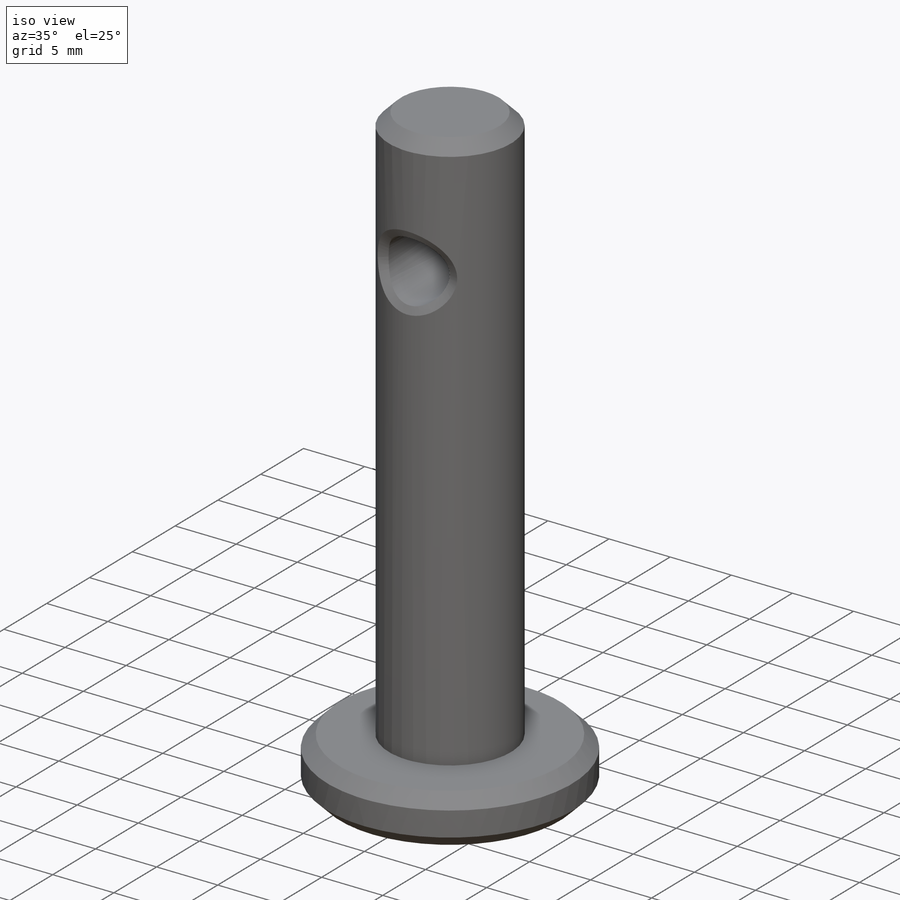
[diagram: iso view]
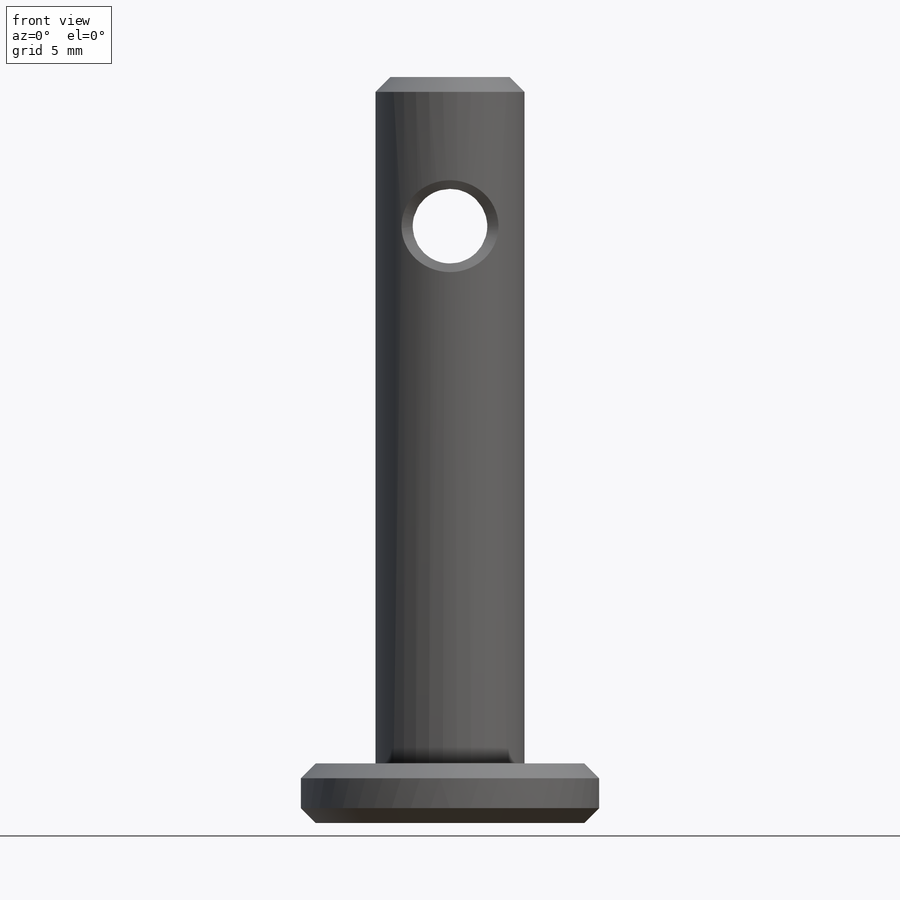
[diagram: front view]
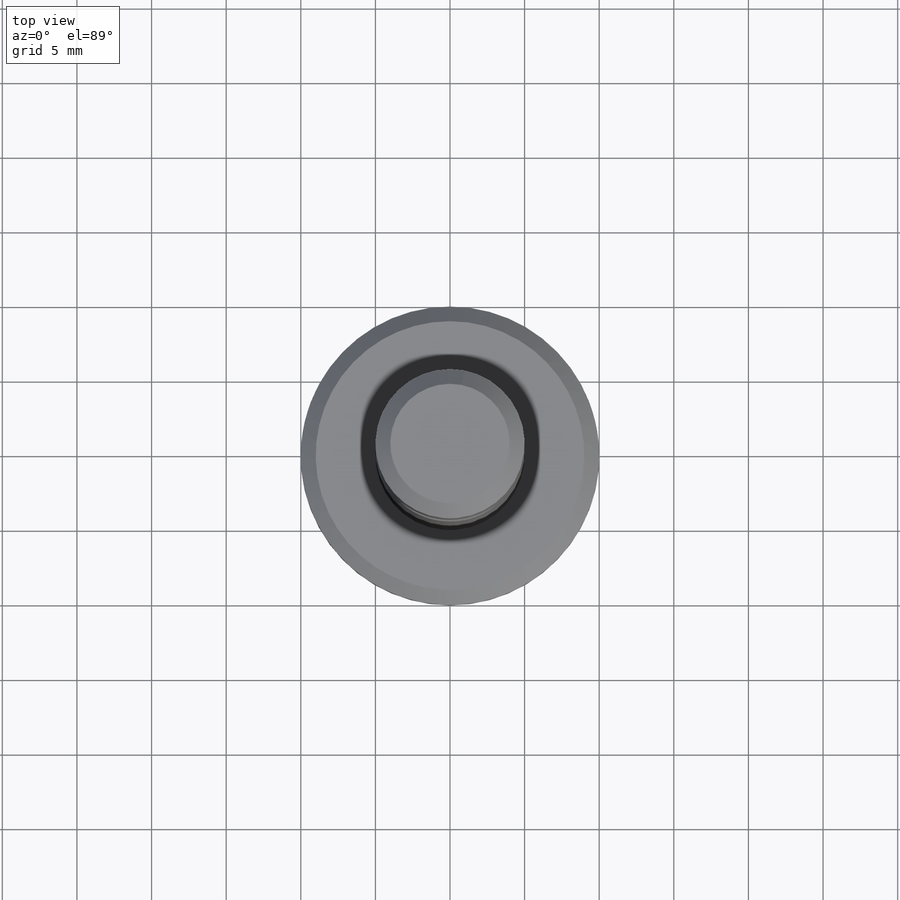
[diagram: top view]
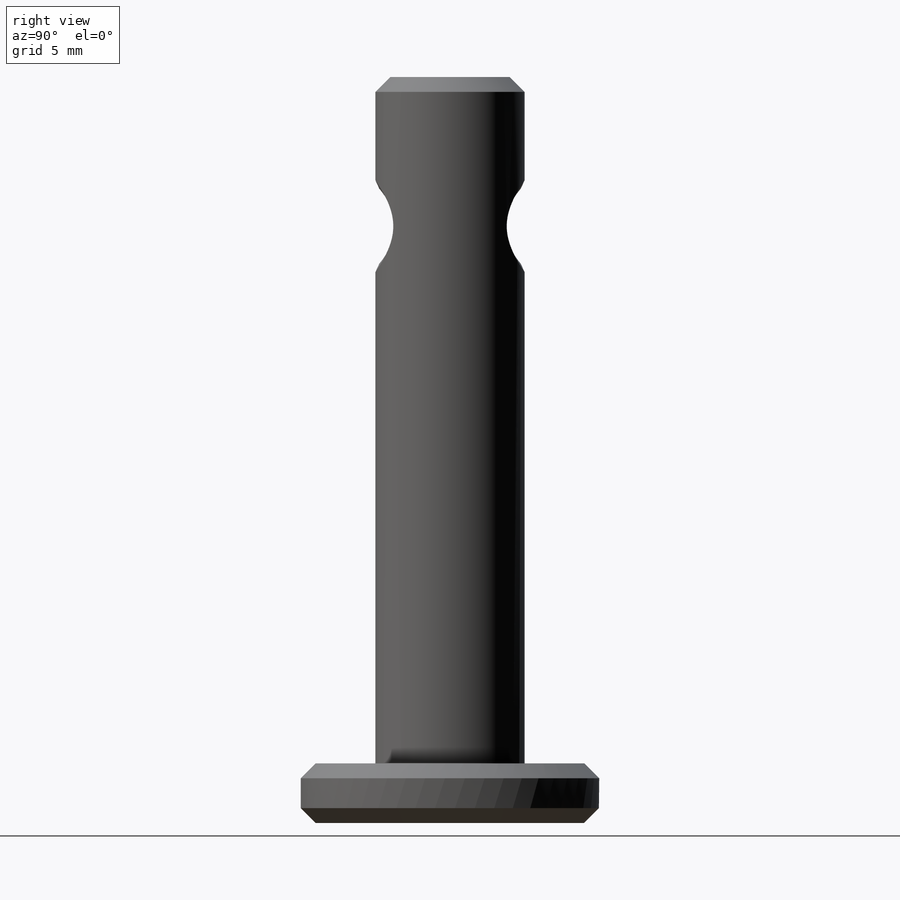
[diagram: right view]
SOLIDWORKS PART (.sldprt)
format: sldprt  version: not decoded by parser v0  size: 242,688 bytes
history: native  units: mm
features: plane x3, sketch x3, extrude x2, material x1, cut_extrude x1, chamfer x1 (+9 scaffold rows collapsed)
feature tree (20):
  scaffold x9  (default folders/planes/origin — collapsed)
  material  "Material <nicht festgelegt>"
  plane  "Vorne"
  plane  "Oben"
  plane  "Rechts"
  sketch  "Skizze1"  dims[D1=10.0mm]
  extrude  "Aufsatz-Linear austragen1"  Depth=46mm
  sketch  "Skizze2"  dims[D1=20.0mm]
  extrude  "Aufsatz-Linear austragen2"  Depth=4mm
  sketch  "Skizze3"  dims[D1=5.0mm D2=36.0mm]
  cut_extrude  "Schnitt-Linear austragen1"  Depth=8mm
  chamfer  "Fase1"  Distance=1mm Angle=45deg
decode coverage: 7 of 7 modeling features carry decoded parameters
note: suppression state not decoded; provenance and decode notes live in map.json
